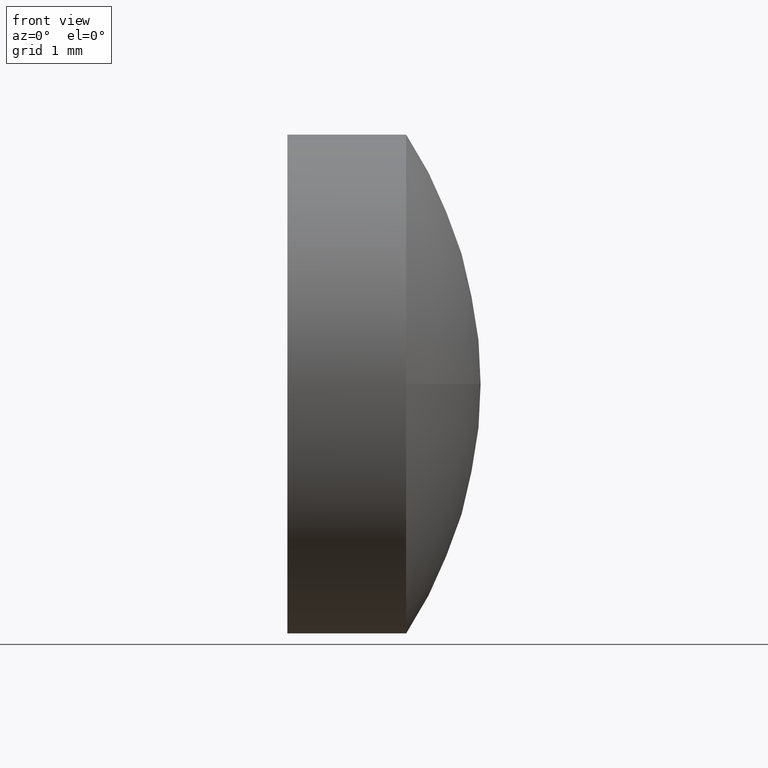
[diagram: clean part render]
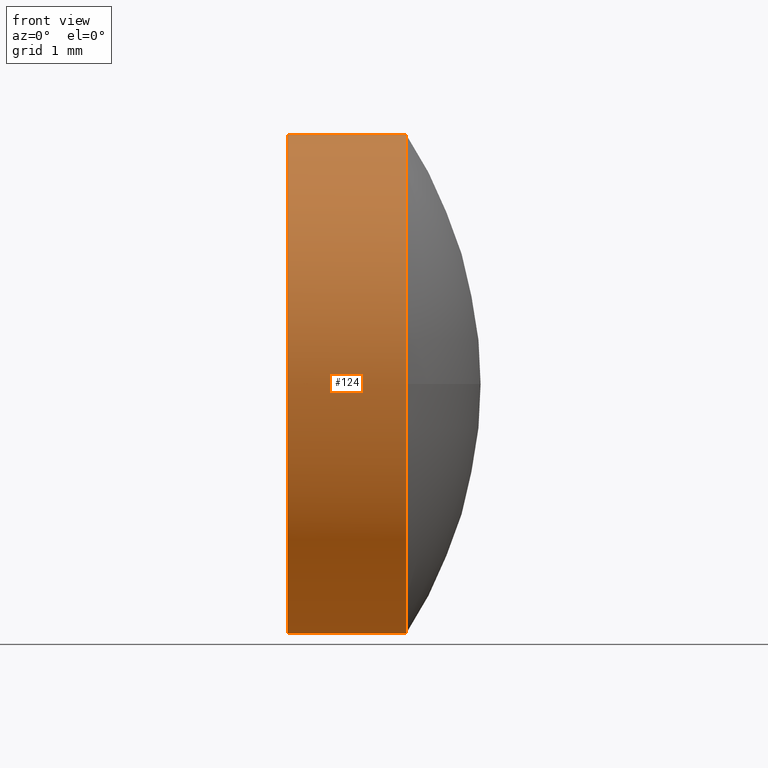
[diagram: same view with one face highlighted and labeled with its STEP entity id]
A machine part, front view. The second image highlights one B-rep face of the part: STEP entity #124.
In plain terms, the highlighted cylindrical surface (partial cylindrical patch) has radius 3.15 mm, axis along (-1, -0, -0).
Its self-contained STEP definition (entity closure, byte-faithful):
#4 = CARTESIAN_POINT ( 'NONE',  ( 419.5098370035601100, -21.67740160652397200, -3.149999999999999900 ) ) ;
#6 = CARTESIAN_POINT ( 'NONE',  ( 418.0098370035601100, -21.67740160652397200, 3.149999999999999900 ) ) ;
#8 = CARTESIAN_POINT ( 'NONE',  ( 419.5098370035601100, -21.67740160652397200, 0.0000000000000000000 ) ) ;
#10 = CARTESIAN_POINT ( 'NONE',  ( 418.0098370035601100, -21.67740160652397200, -3.149999999999999900 ) ) ;
#12 = DIRECTION ( 'NONE',  ( 0.0000000000000000000, 0.0000000000000000000, 1.000000000000000000 ) ) ;
#14 = LINE ( 'NONE', #110, #163 ) ;
#25 = CYLINDRICAL_SURFACE ( 'NONE', #126, 3.149999999999999900 ) ;
#28 = EDGE_CURVE ( 'NONE', #94, #36, #139, .T. ) ;
#35 = LINE ( 'NONE', #89, #63 ) ;
#36 = VERTEX_POINT ( 'NONE', #6 ) ;
#37 = EDGE_CURVE ( 'NONE', #97, #107, #122, .T. ) ;
#42 = CARTESIAN_POINT ( 'NONE',  ( 419.5098370035601100, -21.67740160652397200, 0.0000000000000000000 ) ) ;
#44 = DIRECTION ( 'NONE',  ( -1.000000000000000000, -0.0000000000000000000, -0.0000000000000000000 ) ) ;
#46 = EDGE_CURVE ( 'NONE', #107, #36, #14, .T. ) ;
#50 = ORIENTED_EDGE ( 'NONE', *, *, #46, .T. ) ;
#53 = DIRECTION ( 'NONE',  ( -1.000000000000000000, -0.0000000000000000000, -0.0000000000000000000 ) ) ;
#63 = VECTOR ( 'NONE', #44, 1000.000000000000000 ) ;
#67 = EDGE_CURVE ( 'NONE', #69, #97, #75, .T. ) ;
#69 = VERTEX_POINT ( 'NONE', #4 ) ;
#71 = DIRECTION ( 'NONE',  ( 0.0000000000000000000, 0.0000000000000000000, 1.000000000000000000 ) ) ;
#72 = DIRECTION ( 'NONE',  ( -1.000000000000000000, -0.0000000000000000000, -0.0000000000000000000 ) ) ;
#75 = CIRCLE ( 'NONE', #177, 3.149999999999999900 ) ;
#84 = DIRECTION ( 'NONE',  ( -1.000000000000000000, -0.0000000000000000000, -0.0000000000000000000 ) ) ;
#85 = DIRECTION ( 'NONE',  ( 0.0000000000000000000, 0.0000000000000000000, 1.000000000000000000 ) ) ;
#87 = DIRECTION ( 'NONE',  ( -1.000000000000000000, -0.0000000000000000000, -0.0000000000000000000 ) ) ;
#89 = CARTESIAN_POINT ( 'NONE',  ( 417.1491989148111100, -21.67740160652397200, -3.149999999999999900 ) ) ;
#94 = VERTEX_POINT ( 'NONE', #10 ) ;
#97 = VERTEX_POINT ( 'NONE', #155 ) ;
#99 = DIRECTION ( 'NONE',  ( -1.000000000000000000, -0.0000000000000000000, -0.0000000000000000000 ) ) ;
#103 = CARTESIAN_POINT ( 'NONE',  ( 417.1491989148111100, -21.67740160652397200, 0.0000000000000000000 ) ) ;
#107 = VERTEX_POINT ( 'NONE', #135 ) ;
#109 = FACE_OUTER_BOUND ( 'NONE', #134, .T. ) ;
#110 = CARTESIAN_POINT ( 'NONE',  ( 417.1491989148111100, -21.67740160652397200, 3.149999999999999900 ) ) ;
#119 = AXIS2_PLACEMENT_3D ( 'NONE', #151, #84, #85 ) ;
#122 = CIRCLE ( 'NONE', #137, 3.149999999999999900 ) ;
#123 = ORIENTED_EDGE ( 'NONE', *, *, #67, .T. ) ;
#124 = ADVANCED_FACE ( 'NONE', ( #109 ), #25, .T. ) ;
#126 = AXIS2_PLACEMENT_3D ( 'NONE', #103, #87, #170 ) ;
#130 = EDGE_CURVE ( 'NONE', #69, #94, #35, .T. ) ;
#134 = EDGE_LOOP ( 'NONE', ( #140, #123, #159, #50, #138 ) ) ;
#135 = CARTESIAN_POINT ( 'NONE',  ( 419.5098370035601100, -21.67740160652397200, 3.149999999999999900 ) ) ;
#137 = AXIS2_PLACEMENT_3D ( 'NONE', #42, #53, #71 ) ;
#138 = ORIENTED_EDGE ( 'NONE', *, *, #28, .F. ) ;
#139 = CIRCLE ( 'NONE', #119, 3.149999999999999900 ) ;
#140 = ORIENTED_EDGE ( 'NONE', *, *, #130, .F. ) ;
#151 = CARTESIAN_POINT ( 'NONE',  ( 418.0098370035601100, -21.67740160652397200, 0.0000000000000000000 ) ) ;
#155 = CARTESIAN_POINT ( 'NONE',  ( 419.5098370035601100, -24.82740160652398100, -3.857637417314154300E-016 ) ) ;
#159 = ORIENTED_EDGE ( 'NONE', *, *, #37, .T. ) ;
#163 = VECTOR ( 'NONE', #99, 1000.000000000000000 ) ;
#170 = DIRECTION ( 'NONE',  ( 0.0000000000000000000, 0.0000000000000000000, 1.000000000000000000 ) ) ;
#177 = AXIS2_PLACEMENT_3D ( 'NONE', #8, #72, #12 ) ;